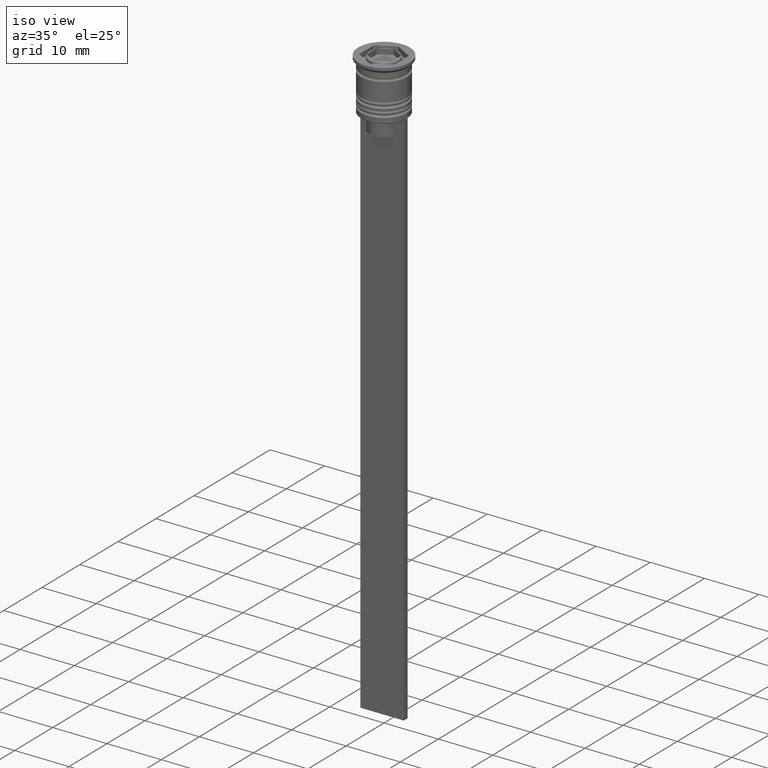
[diagram: clean part render]
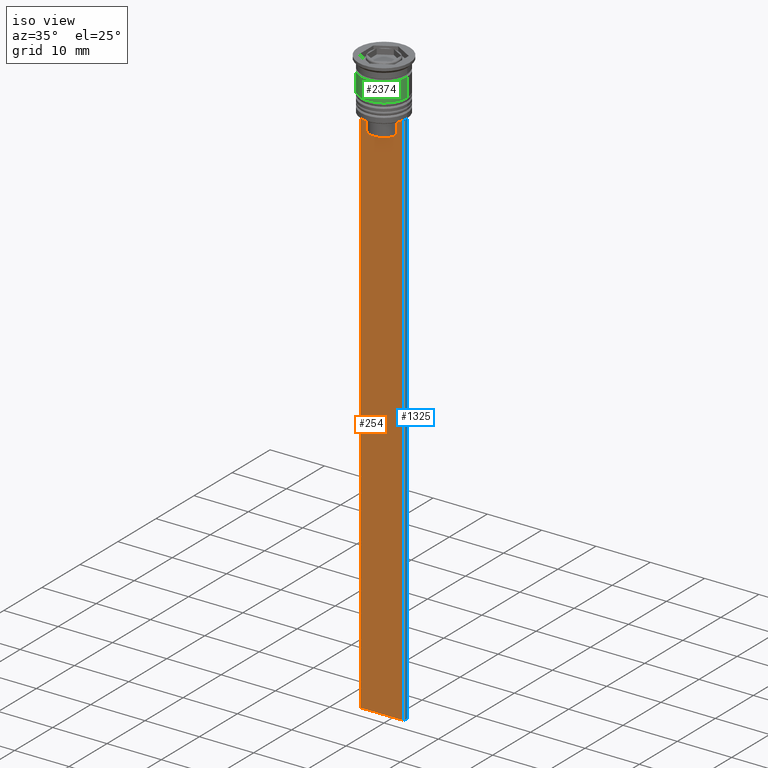
[diagram: same view with three faces highlighted in distinct colors, each labeled with its STEP entity id]
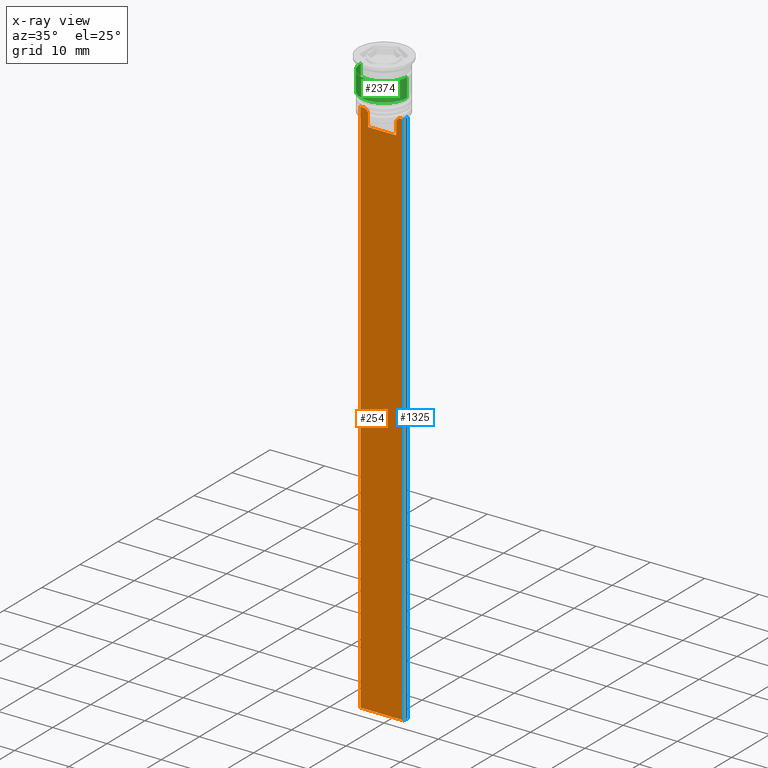
[diagram: x-ray of the same camera — body ghosted, the three highlighted faces saturated]
A machine part, iso view with three faces highlighted in distinct colors.
The next image is the same camera in x-ray (body ghosted, the three faces saturated) — at least one of them is partly hidden behind the body in this view.
Their STEP definitions:

[orange] entity #254 — the highlighted planar face has unit normal (0, -1, -0).
#28 = LINE ( 'NONE', #391, #1059 ) ;
#39 = EDGE_CURVE ( 'NONE', #2062, #1098, #1444, .T. ) ;
#46 = CARTESIAN_POINT ( 'NONE',  ( -2.602402735934616906, -0.5000000000000004441, -10.00000000000000178 ) ) ;
#72 = VECTOR ( 'NONE', #141, 1000.000000000000000 ) ;
#91 = EDGE_CURVE ( 'NONE', #2062, #387, #266, .T. ) ;
#141 = DIRECTION ( 'NONE',  ( 1.000000000000000000, 0.000000000000000000, 0.000000000000000000 ) ) ;
#149 = B_SPLINE_CURVE_WITH_KNOTS ( 'NONE', 3,
 ( #1103, #1851, #2387, #46 ),
 .UNSPECIFIED., .F., .F.,
 ( 4, 4 ),
 ( 0.005378271293598281544, 0.006090816219556000749 ),
 .UNSPECIFIED. ) ;
#236 = ORIENTED_EDGE ( 'NONE', *, *, #942, .F. ) ;
#254 = ADVANCED_FACE ( 'NONE', ( #1372 ), #656, .T. ) ;
#266 = LINE ( 'NONE', #1745, #1073 ) ;
#282 = ORIENTED_EDGE ( 'NONE', *, *, #91, .T. ) ;
#295 = ORIENTED_EDGE ( 'NONE', *, *, #802, .F. ) ;
#306 = ORIENTED_EDGE ( 'NONE', *, *, #39, .F. ) ;
#363 = CARTESIAN_POINT ( 'NONE',  ( 4.000000000000005329, -0.5000000000000004441, -9.500000000000000000 ) ) ;
#370 = ORIENTED_EDGE ( 'NONE', *, *, #991, .F. ) ;
#387 = VERTEX_POINT ( 'NONE', #1709 ) ;
#391 = CARTESIAN_POINT ( 'NONE',  ( 4.000000000000005329, -0.5000000000000004441, -1.437742251701450202 ) ) ;
#473 = CARTESIAN_POINT ( 'NONE',  ( 0.000000000000000000, -0.5000000000000004441, -12.50000000000000000 ) ) ;
#486 = DIRECTION ( 'NONE',  ( -0.000000000000000000, -0.000000000000000000, 1.000000000000000000 ) ) ;
#519 = VECTOR ( 'NONE', #1526, 1000.000000000000000 ) ;
#554 = CARTESIAN_POINT ( 'NONE',  ( -2.602402735934616906, -0.5000000000000004441, -12.50000000000000000 ) ) ;
#559 = DIRECTION ( 'NONE',  ( 0.000000000000000000, 0.000000000000000000, -1.000000000000000000 ) ) ;
#589 = CARTESIAN_POINT ( 'NONE',  ( 2.602402735934616906, -0.5000000000000004441, -12.50000000000000000 ) ) ;
#639 = CARTESIAN_POINT ( 'NONE',  ( -3.999999999999994671, -0.5000000000000004441, -9.500000000000000000 ) ) ;
#656 = PLANE ( 'NONE',  #1804 ) ;
#773 = EDGE_CURVE ( 'NONE', #1142, #1467, #2360, .T. ) ;
#786 = CARTESIAN_POINT ( 'NONE',  ( 4.000000000000005329, -0.5000000000000004441, -9.500000000000000000 ) ) ;
#802 = EDGE_CURVE ( 'NONE', #1841, #1142, #1041, .T. ) ;
#891 = DIRECTION ( 'NONE',  ( 1.000000000000000000, 0.000000000000000000, 0.000000000000000000 ) ) ;
#892 = LINE ( 'NONE', #1437, #1794 ) ;
#924 = ORIENTED_EDGE ( 'NONE', *, *, #2256, .F. ) ;
#932 = DIRECTION ( 'NONE',  ( -1.000000000000000000, 0.000000000000000000, 0.000000000000000000 ) ) ;
#942 = EDGE_CURVE ( 'NONE', #1098, #1452, #149, .T. ) ;
#991 = EDGE_CURVE ( 'NONE', #1456, #2081, #28, .T. ) ;
#1041 = LINE ( 'NONE', #473, #1223 ) ;
#1059 = VECTOR ( 'NONE', #1127, 1000.000000000000000 ) ;
#1070 = VERTEX_POINT ( 'NONE', #1534 ) ;
#1073 = VECTOR ( 'NONE', #1200, 1000.000000000000000 ) ;
#1098 = VERTEX_POINT ( 'NONE', #2109 ) ;
#1103 = CARTESIAN_POINT ( 'NONE',  ( -3.110064308016796453, -0.5000000000000004441, -9.500000000000000000 ) ) ;
#1127 = DIRECTION ( 'NONE',  ( 0.000000000000000000, 0.000000000000000000, -1.000000000000000000 ) ) ;
#1142 = VERTEX_POINT ( 'NONE', #589 ) ;
#1200 = DIRECTION ( 'NONE',  ( 0.000000000000000000, 0.000000000000000000, -1.000000000000000000 ) ) ;
#1223 = VECTOR ( 'NONE', #891, 1000.000000000000000 ) ;
#1334 = B_SPLINE_CURVE_WITH_KNOTS ( 'NONE', 3,
 ( #1671, #1683, #1710, #1504 ),
 .UNSPECIFIED., .F., .F.,
 ( 4, 4 ),
 ( 0.01295151922336847811, 0.01367164596165162602 ),
 .UNSPECIFIED. ) ;
#1372 = FACE_OUTER_BOUND ( 'NONE', #1663, .T. ) ;
#1437 = CARTESIAN_POINT ( 'NONE',  ( 4.000000000000005329, -0.5000000000000004441, -109.5000000000000000 ) ) ;
#1444 = LINE ( 'NONE', #363, #72 ) ;
#1448 = VECTOR ( 'NONE', #1805, 1000.000000000000000 ) ;
#1452 = VERTEX_POINT ( 'NONE', #1551 ) ;
#1456 = VERTEX_POINT ( 'NONE', #786 ) ;
#1467 = VERTEX_POINT ( 'NONE', #2252 ) ;
#1504 = CARTESIAN_POINT ( 'NONE',  ( 3.110064308016796453, -0.5000000000000004441, -9.500000000000000000 ) ) ;
#1526 = DIRECTION ( 'NONE',  ( 1.000000000000000000, 0.000000000000000000, 0.000000000000000000 ) ) ;
#1534 = CARTESIAN_POINT ( 'NONE',  ( 3.110064308016796453, -0.5000000000000004441, -9.500000000000000000 ) ) ;
#1551 = CARTESIAN_POINT ( 'NONE',  ( -2.602402735934616906, -0.5000000000000004441, -10.00000000000000178 ) ) ;
#1557 = CARTESIAN_POINT ( 'NONE',  ( 4.000000000000005329, -0.5000000000000004441, -109.5000000000000000 ) ) ;
#1656 = VECTOR ( 'NONE', #486, 1000.000000000000000 ) ;
#1663 = EDGE_LOOP ( 'NONE', ( #236, #306, #282, #924, #370, #1890, #2236, #2380, #295, #2370 ) ) ;
#1667 = DIRECTION ( 'NONE',  ( 0.000000000000000000, -1.000000000000000000, -0.000000000000000000 ) ) ;
#1671 = CARTESIAN_POINT ( 'NONE',  ( 2.602402735934616906, -0.5000000000000004441, -10.00000000000000178 ) ) ;
#1683 = CARTESIAN_POINT ( 'NONE',  ( 2.771864055700302476, -0.5000000000000004441, -9.833582414266679450 ) ) ;
#1709 = CARTESIAN_POINT ( 'NONE',  ( -3.999999999999994671, -0.5000000000000004441, -109.5000000000000000 ) ) ;
#1710 = CARTESIAN_POINT ( 'NONE',  ( 2.941045828809988549, -0.5000000000000004441, -9.666875663357577864 ) ) ;
#1745 = CARTESIAN_POINT ( 'NONE',  ( -3.999999999999994671, -0.5000000000000004441, -1.437742251701450202 ) ) ;
#1794 = VECTOR ( 'NONE', #932, 1000.000000000000000 ) ;
#1796 = EDGE_CURVE ( 'NONE', #1452, #1841, #2382, .T. ) ;
#1804 = AXIS2_PLACEMENT_3D ( 'NONE', #1915, #1667, #559 ) ;
#1805 = DIRECTION ( 'NONE',  ( 0.000000000000000000, 0.000000000000000000, -1.000000000000000000 ) ) ;
#1841 = VERTEX_POINT ( 'NONE', #554 ) ;
#1851 = CARTESIAN_POINT ( 'NONE',  ( -2.941047749529104749, -0.5000000000000004441, -9.666873766989334982 ) ) ;
#1890 = ORIENTED_EDGE ( 'NONE', *, *, #2290, .F. ) ;
#1907 = CARTESIAN_POINT ( 'NONE',  ( 4.000000000000005329, -0.5000000000000004441, -9.500000000000000000 ) ) ;
#1915 = CARTESIAN_POINT ( 'NONE',  ( 4.000000000000005329, -0.5000000000000004441, -1.437742251701450202 ) ) ;
#1993 = CARTESIAN_POINT ( 'NONE',  ( 2.602402735934616906, -0.5000000000000004441, 0.000000000000000000 ) ) ;
#2000 = CARTESIAN_POINT ( 'NONE',  ( -2.602402735934616906, -0.5000000000000004441, 0.000000000000000000 ) ) ;
#2062 = VERTEX_POINT ( 'NONE', #639 ) ;
#2081 = VERTEX_POINT ( 'NONE', #1557 ) ;
#2109 = CARTESIAN_POINT ( 'NONE',  ( -3.110064308016796453, -0.5000000000000004441, -9.500000000000000000 ) ) ;
#2236 = ORIENTED_EDGE ( 'NONE', *, *, #2321, .F. ) ;
#2252 = CARTESIAN_POINT ( 'NONE',  ( 2.602402735934616906, -0.5000000000000004441, -10.00000000000000178 ) ) ;
#2256 = EDGE_CURVE ( 'NONE', #2081, #387, #892, .T. ) ;
#2258 = LINE ( 'NONE', #1907, #519 ) ;
#2290 = EDGE_CURVE ( 'NONE', #1070, #1456, #2258, .T. ) ;
#2321 = EDGE_CURVE ( 'NONE', #1467, #1070, #1334, .T. ) ;
#2360 = LINE ( 'NONE', #1993, #1656 ) ;
#2370 = ORIENTED_EDGE ( 'NONE', *, *, #1796, .F. ) ;
#2380 = ORIENTED_EDGE ( 'NONE', *, *, #773, .F. ) ;
#2382 = LINE ( 'NONE', #2000, #1448 ) ;
#2387 = CARTESIAN_POINT ( 'NONE',  ( -2.771866350855961336, -0.5000000000000004441, -9.833580160334840059 ) ) ;

[blue] entity #1325 — the highlighted planar face has unit normal (-1, 0, 0).
#26 = LINE ( 'NONE', #1654, #1790 ) ;
#28 = LINE ( 'NONE', #391, #1059 ) ;
#201 = ORIENTED_EDGE ( 'NONE', *, *, #991, .T. ) ;
#252 = DIRECTION ( 'NONE',  ( 0.000000000000000000, 1.000000000000000000, 0.000000000000000000 ) ) ;
#360 = CARTESIAN_POINT ( 'NONE',  ( 4.000000000000005329, -0.5000000000000004441, -1.437742251701450202 ) ) ;
#391 = CARTESIAN_POINT ( 'NONE',  ( 4.000000000000005329, -0.5000000000000004441, -1.437742251701450202 ) ) ;
#394 = VERTEX_POINT ( 'NONE', #992 ) ;
#572 = CARTESIAN_POINT ( 'NONE',  ( 4.000000000000005329, 0.4999999999999995559, -1.437742251701450202 ) ) ;
#578 = ORIENTED_EDGE ( 'NONE', *, *, #1326, .T. ) ;
#715 = VECTOR ( 'NONE', #252, 1000.000000000000000 ) ;
#786 = CARTESIAN_POINT ( 'NONE',  ( 4.000000000000005329, -0.5000000000000004441, -9.500000000000000000 ) ) ;
#925 = DIRECTION ( 'NONE',  ( 0.000000000000000000, 0.000000000000000000, 1.000000000000000000 ) ) ;
#991 = EDGE_CURVE ( 'NONE', #1456, #2081, #28, .T. ) ;
#992 = CARTESIAN_POINT ( 'NONE',  ( 4.000000000000005329, 0.4999999999999995559, -9.500000000000000000 ) ) ;
#1059 = VECTOR ( 'NONE', #1127, 1000.000000000000000 ) ;
#1099 = FACE_OUTER_BOUND ( 'NONE', #1441, .T. ) ;
#1127 = DIRECTION ( 'NONE',  ( 0.000000000000000000, 0.000000000000000000, -1.000000000000000000 ) ) ;
#1135 = DIRECTION ( 'NONE',  ( -1.000000000000000000, 0.000000000000000000, 0.000000000000000000 ) ) ;
#1325 = ADVANCED_FACE ( 'NONE', ( #1099 ), #2188, .F. ) ;
#1326 = EDGE_CURVE ( 'NONE', #394, #1456, #26, .T. ) ;
#1441 = EDGE_LOOP ( 'NONE', ( #1964, #578, #201, #1711 ) ) ;
#1456 = VERTEX_POINT ( 'NONE', #786 ) ;
#1511 = EDGE_CURVE ( 'NONE', #2081, #1655, #1910, .T. ) ;
#1548 = LINE ( 'NONE', #572, #1839 ) ;
#1557 = CARTESIAN_POINT ( 'NONE',  ( 4.000000000000005329, -0.5000000000000004441, -109.5000000000000000 ) ) ;
#1654 = CARTESIAN_POINT ( 'NONE',  ( 4.000000000000005329, -0.5000000000000004441, -9.500000000000000000 ) ) ;
#1655 = VERTEX_POINT ( 'NONE', #1975 ) ;
#1690 = DIRECTION ( 'NONE',  ( 0.000000000000000000, 0.000000000000000000, -1.000000000000000000 ) ) ;
#1711 = ORIENTED_EDGE ( 'NONE', *, *, #1511, .T. ) ;
#1790 = VECTOR ( 'NONE', #1818, 1000.000000000000000 ) ;
#1818 = DIRECTION ( 'NONE',  ( 0.000000000000000000, -1.000000000000000000, 0.000000000000000000 ) ) ;
#1839 = VECTOR ( 'NONE', #1690, 1000.000000000000000 ) ;
#1910 = LINE ( 'NONE', #2240, #715 ) ;
#1964 = ORIENTED_EDGE ( 'NONE', *, *, #2008, .F. ) ;
#1975 = CARTESIAN_POINT ( 'NONE',  ( 4.000000000000005329, 0.4999999999999995559, -109.5000000000000000 ) ) ;
#2008 = EDGE_CURVE ( 'NONE', #394, #1655, #1548, .T. ) ;
#2081 = VERTEX_POINT ( 'NONE', #1557 ) ;
#2188 = PLANE ( 'NONE',  #2369 ) ;
#2240 = CARTESIAN_POINT ( 'NONE',  ( 4.000000000000005329, -0.5000000000000004441, -109.5000000000000000 ) ) ;
#2369 = AXIS2_PLACEMENT_3D ( 'NONE', #360, #1135, #925 ) ;

[green] entity #2374 — the highlighted cylindrical surface (edge-blend (fillet) strip) has radius 4.25 mm, axis along (-0, -0, 1).
#17 = CARTESIAN_POINT ( 'NONE',  ( 0.000000000000000000, 0.000000000000000000, 0.000000000000000000 ) ) ;
#75 = CARTESIAN_POINT ( 'NONE',  ( 0.000000000000000000, 0.000000000000000000, -6.000000000000000000 ) ) ;
#79 = EDGE_CURVE ( 'NONE', #1315, #2158, #1761, .T. ) ;
#88 = EDGE_CURVE ( 'NONE', #1315, #1322, #1009, .T. ) ;
#216 = LINE ( 'NONE', #774, #2227 ) ;
#263 = AXIS2_PLACEMENT_3D ( 'NONE', #75, #1552, #1738 ) ;
#398 = CARTESIAN_POINT ( 'NONE',  ( -4.250000000000000000, 5.204748896376250699E-16, -2.500000000000000000 ) ) ;
#435 = DIRECTION ( 'NONE',  ( -0.000000000000000000, -0.000000000000000000, 1.000000000000000000 ) ) ;
#440 = EDGE_CURVE ( 'NONE', #2158, #660, #216, .T. ) ;
#444 = AXIS2_PLACEMENT_3D ( 'NONE', #1417, #2149, #2293 ) ;
#566 = VECTOR ( 'NONE', #1381, 1000.000000000000000 ) ;
#595 = ORIENTED_EDGE ( 'NONE', *, *, #79, .T. ) ;
#608 = ORIENTED_EDGE ( 'NONE', *, *, #1269, .F. ) ;
#660 = VERTEX_POINT ( 'NONE', #1276 ) ;
#663 = ORIENTED_EDGE ( 'NONE', *, *, #88, .F. ) ;
#739 = CARTESIAN_POINT ( 'NONE',  ( 4.250000000000000888, 0.000000000000000000, -6.000000000000000000 ) ) ;
#774 = CARTESIAN_POINT ( 'NONE',  ( 4.250000000000000000, 0.000000000000000000, 0.000000000000000000 ) ) ;
#1009 = LINE ( 'NONE', #1946, #566 ) ;
#1112 = CARTESIAN_POINT ( 'NONE',  ( -4.250000000000000888, 5.204748896376251685E-16, -6.000000000000000000 ) ) ;
#1269 = EDGE_CURVE ( 'NONE', #1322, #660, #1291, .T. ) ;
#1276 = CARTESIAN_POINT ( 'NONE',  ( 4.250000000000000000, 0.000000000000000000, -2.500000000000000000 ) ) ;
#1291 = CIRCLE ( 'NONE', #444, 4.250000000000000000 ) ;
#1315 = VERTEX_POINT ( 'NONE', #1112 ) ;
#1322 = VERTEX_POINT ( 'NONE', #398 ) ;
#1381 = DIRECTION ( 'NONE',  ( -0.000000000000000000, -0.000000000000000000, 1.000000000000000000 ) ) ;
#1417 = CARTESIAN_POINT ( 'NONE',  ( 0.000000000000000000, 0.000000000000000000, -2.500000000000000000 ) ) ;
#1488 = DIRECTION ( 'NONE',  ( 1.000000000000000000, 0.000000000000000000, 0.000000000000000000 ) ) ;
#1552 = DIRECTION ( 'NONE',  ( -0.000000000000000000, -0.000000000000000000, 1.000000000000000000 ) ) ;
#1603 = AXIS2_PLACEMENT_3D ( 'NONE', #17, #435, #1488 ) ;
#1738 = DIRECTION ( 'NONE',  ( 1.000000000000000000, 0.000000000000000000, 0.000000000000000000 ) ) ;
#1761 = CIRCLE ( 'NONE', #263, 4.250000000000000888 ) ;
#1885 = DIRECTION ( 'NONE',  ( -0.000000000000000000, -0.000000000000000000, 1.000000000000000000 ) ) ;
#1946 = CARTESIAN_POINT ( 'NONE',  ( -4.250000000000000000, 5.204748896376250699E-16, 0.000000000000000000 ) ) ;
#2047 = CYLINDRICAL_SURFACE ( 'NONE', #1603, 4.250000000000000000 ) ;
#2088 = FACE_OUTER_BOUND ( 'NONE', #2250, .T. ) ;
#2149 = DIRECTION ( 'NONE',  ( -0.000000000000000000, -0.000000000000000000, 1.000000000000000000 ) ) ;
#2158 = VERTEX_POINT ( 'NONE', #739 ) ;
#2194 = ORIENTED_EDGE ( 'NONE', *, *, #440, .T. ) ;
#2227 = VECTOR ( 'NONE', #1885, 1000.000000000000000 ) ;
#2250 = EDGE_LOOP ( 'NONE', ( #663, #595, #2194, #608 ) ) ;
#2293 = DIRECTION ( 'NONE',  ( 1.000000000000000000, 0.000000000000000000, 0.000000000000000000 ) ) ;
#2374 = ADVANCED_FACE ( 'NONE', ( #2088 ), #2047, .T. ) ;